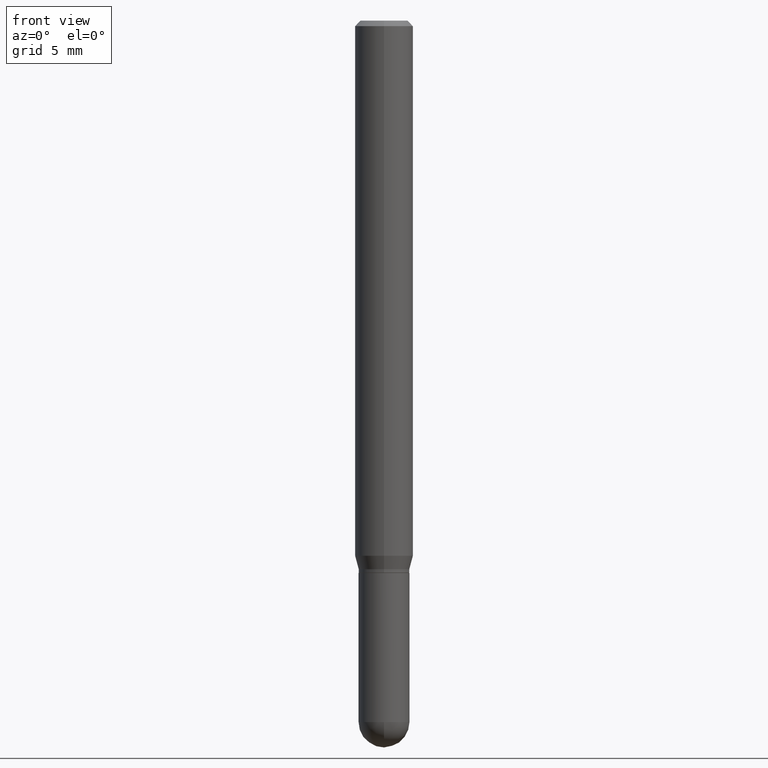
[diagram: clean part render]
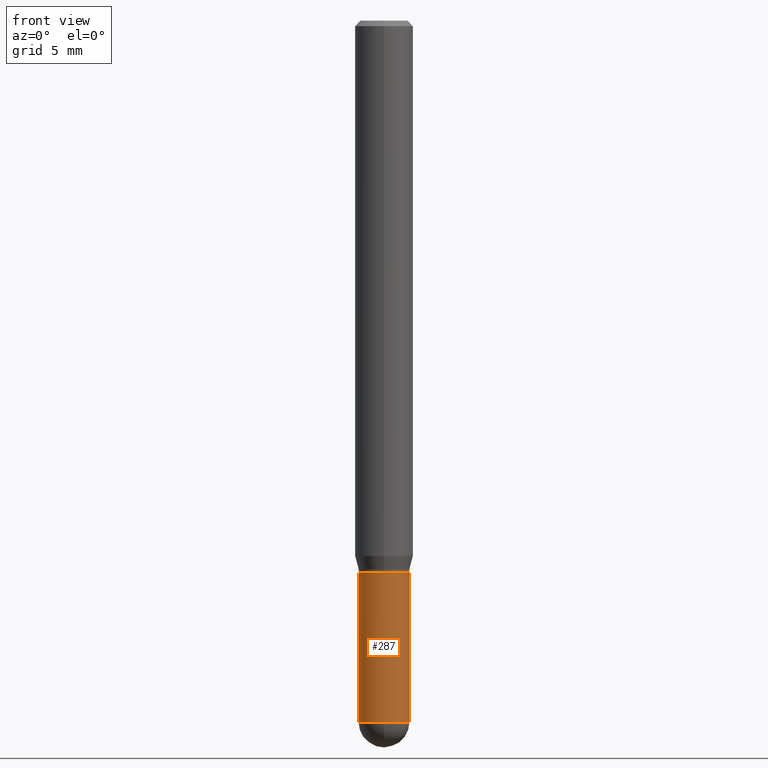
[diagram: same view with one face highlighted and labeled with its STEP entity id]
A machine part, front view. The second image highlights one B-rep face of the part: STEP entity #287.
In plain terms, the highlighted cylindrical surface (edge-blend (fillet) strip) has radius 1.7501 mm, axis along (-0, 0, 1).
Its self-contained STEP definition (entity closure, byte-faithful):
#2 = AXIS2_PLACEMENT_3D ( 'NONE', #27, #419, #63 ) ;
#3 = VERTEX_POINT ( 'NONE', #241 ) ;
#8 = DIRECTION ( 'NONE',  ( 1.000000000000000000, -6.982962677686273021E-15, 0.000000000000000000 ) ) ;
#10 = VERTEX_POINT ( 'NONE', #360 ) ;
#20 = CYLINDRICAL_SURFACE ( 'NONE', #362, 0.06890000000000007230 ) ;
#27 = CARTESIAN_POINT ( 'NONE',  ( 4.645412544229285965E-29, -6.632417951266439838E-15, -1.899600000000000177 ) ) ;
#36 = DIRECTION ( 'NONE',  ( -2.445468806185136597E-29, 3.491481338843145583E-15, 1.000000000000000000 ) ) ;
#41 = CARTESIAN_POINT ( 'NONE',  ( -0.06890000000000008618, -5.438447646216124813E-15, -1.899600000000000177 ) ) ;
#48 = ORIENTED_EDGE ( 'NONE', *, *, #212, .T. ) ;
#51 = AXIS2_PLACEMENT_3D ( 'NONE', #316, #36, #8 ) ;
#57 = LINE ( 'NONE', #62, #459 ) ;
#62 = CARTESIAN_POINT ( 'NONE',  ( -0.06890000000000007230, 4.895639449387095418E-16, -3.389146277185633520E-30 ) ) ;
#63 = DIRECTION ( 'NONE',  ( 1.000000000000000000, -6.982962677686273021E-15, 0.000000000000000000 ) ) ;
#83 = ORIENTED_EDGE ( 'NONE', *, *, #145, .T. ) ;
#92 = ORIENTED_EDGE ( 'NONE', *, *, #317, .T. ) ;
#128 = ORIENTED_EDGE ( 'NONE', *, *, #164, .F. ) ;
#145 = EDGE_CURVE ( 'NONE', #414, #496, #190, .T. ) ;
#147 = DIRECTION ( 'NONE',  ( -2.445468806185136597E-29, 3.491481338843145583E-15, 1.000000000000000000 ) ) ;
#164 = EDGE_CURVE ( 'NONE', #10, #3, #380, .T. ) ;
#166 = VECTOR ( 'NONE', #504, 39.37007874015748143 ) ;
#169 = FACE_OUTER_BOUND ( 'NONE', #230, .T. ) ;
#184 = DIRECTION ( 'NONE',  ( 1.000000000000000000, -6.982962677686265922E-15, 4.876176775795935232E-29 ) ) ;
#190 = CIRCLE ( 'NONE', #2, 0.06890000000000007230 ) ;
#212 = EDGE_CURVE ( 'NONE', #496, #502, #282, .T. ) ;
#216 = CARTESIAN_POINT ( 'NONE',  ( 3.658665880933582389E-29, -5.223605231043229660E-15, -1.496099999999999985 ) ) ;
#218 = DIRECTION ( 'NONE',  ( 1.000000000000000000, -6.982962677686273021E-15, 0.000000000000000000 ) ) ;
#230 = EDGE_LOOP ( 'NONE', ( #473, #83, #48, #92, #128 ) ) ;
#241 = CARTESIAN_POINT ( 'NONE',  ( 0.06890000000000007230, -5.704731359535814187E-15, -1.496099999999999985 ) ) ;
#256 = CARTESIAN_POINT ( 'NONE',  ( 0.000000000000000000, 0.000000000000000000, 0.000000000000000000 ) ) ;
#282 = CIRCLE ( 'NONE', #51, 0.06890000000000007230 ) ;
#287 = ADVANCED_FACE ( 'NONE', ( #169 ), #20, .T. ) ;
#301 = DIRECTION ( 'NONE',  ( -2.445468806185136877E-29, 3.491481338843145188E-15, 1.000000000000000000 ) ) ;
#316 = CARTESIAN_POINT ( 'NONE',  ( 4.645412544229285965E-29, -6.632417951266439838E-15, -1.899600000000000177 ) ) ;
#317 = EDGE_CURVE ( 'NONE', #502, #3, #512, .T. ) ;
#322 = AXIS2_PLACEMENT_3D ( 'NONE', #216, #374, #218 ) ;
#328 = EDGE_CURVE ( 'NONE', #414, #10, #57, .T. ) ;
#333 = CARTESIAN_POINT ( 'NONE',  ( 0.06890000000000007230, -4.811261284925842315E-16, 3.359685798523402771E-30 ) ) ;
#344 = CARTESIAN_POINT ( 'NONE',  ( -4.895639449386624073E-16, -0.06890000000000662261, -1.899599999999999955 ) ) ;
#360 = CARTESIAN_POINT ( 'NONE',  ( -0.06890000000000007230, -5.438447646216124813E-15, -1.496099999999999985 ) ) ;
#362 = AXIS2_PLACEMENT_3D ( 'NONE', #256, #147, #184 ) ;
#374 = DIRECTION ( 'NONE',  ( -2.445468806185136597E-29, 3.491481338843145583E-15, 1.000000000000000000 ) ) ;
#380 = CIRCLE ( 'NONE', #322, 0.06890000000000007230 ) ;
#414 = VERTEX_POINT ( 'NONE', #41 ) ;
#419 = DIRECTION ( 'NONE',  ( -2.445468806185136597E-29, 3.491481338843145583E-15, 1.000000000000000000 ) ) ;
#431 = CARTESIAN_POINT ( 'NONE',  ( 0.06890000000000008618, -6.409137719647418882E-15, -1.899600000000000177 ) ) ;
#459 = VECTOR ( 'NONE', #301, 39.37007874015748143 ) ;
#473 = ORIENTED_EDGE ( 'NONE', *, *, #328, .F. ) ;
#496 = VERTEX_POINT ( 'NONE', #344 ) ;
#502 = VERTEX_POINT ( 'NONE', #431 ) ;
#504 = DIRECTION ( 'NONE',  ( -2.445468806185136877E-29, 3.491481338843145188E-15, 1.000000000000000000 ) ) ;
#512 = LINE ( 'NONE', #333, #166 ) ;